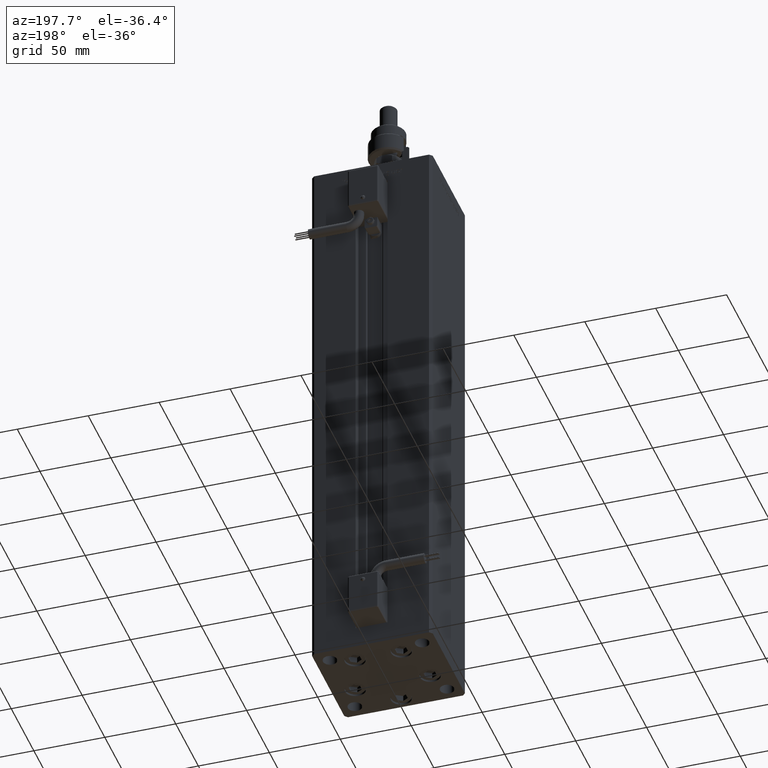
[diagram: clean part render]
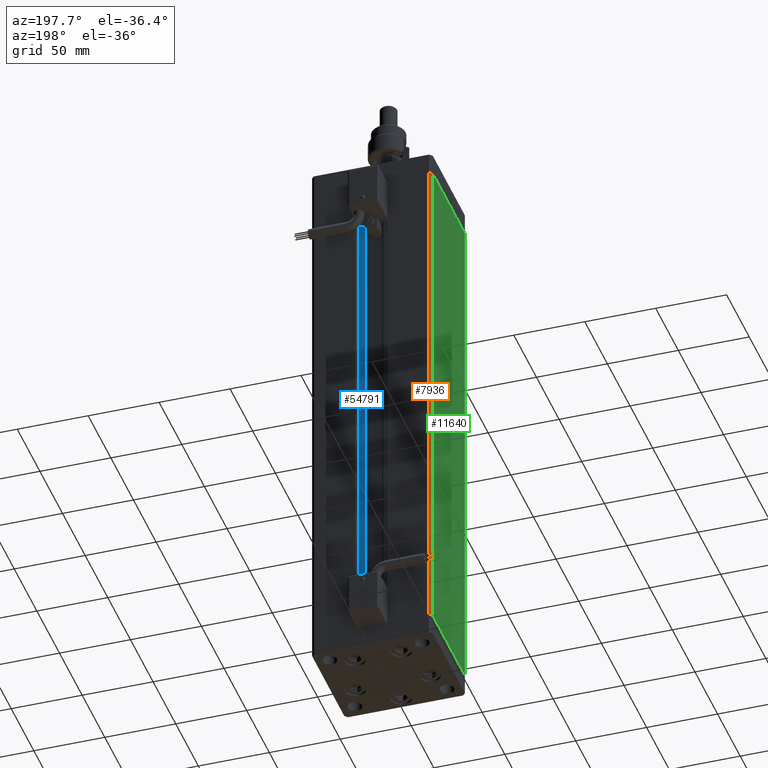
[diagram: same view with three faces highlighted in distinct colors, each labeled with its STEP entity id]
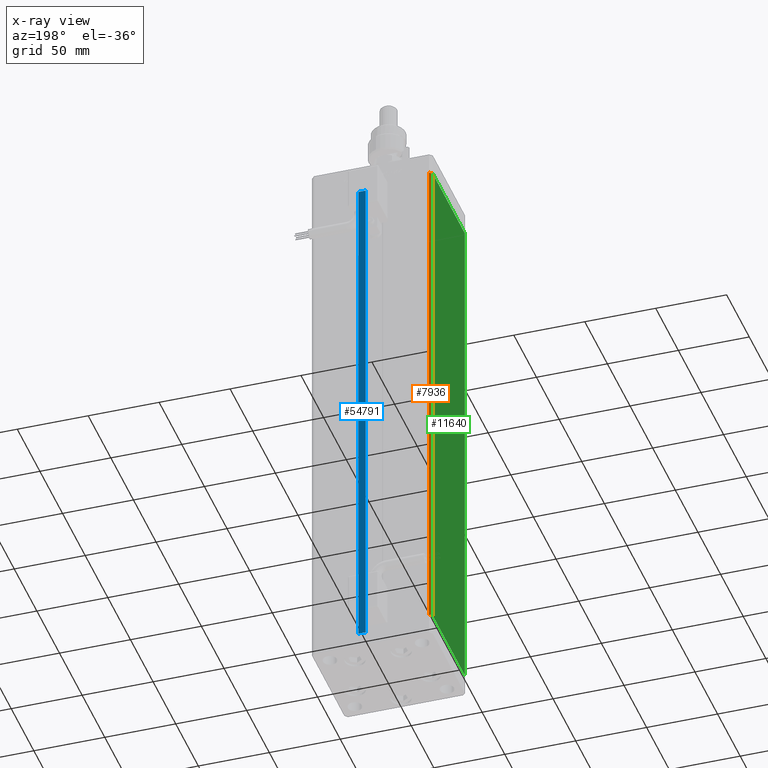
[diagram: x-ray of the same camera — body ghosted, the three highlighted faces saturated]
A machine part, auxiliary view with three faces highlighted in distinct colors.
The next image is the same camera in x-ray (body ghosted, the three faces saturated) — at least one of them is partly hidden behind the body in this view.
Their STEP definitions:

[orange] entity #7936 — the highlighted planar face has unit normal (0.7071, -0.7071, 0).
#1529 = FACE_OUTER_BOUND ( 'NONE', #43934, .T. ) ;
#1696 = CARTESIAN_POINT ( 'NONE',  ( -40.50000000000000000, 37.50000000000000711, 368.5000000000000000 ) ) ;
#2024 = VERTEX_POINT ( 'NONE', #6873 ) ;
#2466 = CARTESIAN_POINT ( 'NONE',  ( -40.50000000000000000, 37.50000000000000711, 0.000000000000000000 ) ) ;
#3852 = CARTESIAN_POINT ( 'NONE',  ( -42.50000000000000711, 35.50000000000001421, 368.5000000000000000 ) ) ;
#5640 = PLANE ( 'NONE',  #12697 ) ;
#6747 = ORIENTED_EDGE ( 'NONE', *, *, #14210, .T. ) ;
#6873 = CARTESIAN_POINT ( 'NONE',  ( -42.50000000000000711, 35.50000000000001421, 0.000000000000000000 ) ) ;
#7936 = ADVANCED_FACE ( 'NONE', ( #1529 ), #5640, .F. ) ;
#9927 = VERTEX_POINT ( 'NONE', #22973 ) ;
#11065 = VERTEX_POINT ( 'NONE', #3852 ) ;
#11210 = CARTESIAN_POINT ( 'NONE',  ( -40.50000000000000000, 37.50000000000000711, 368.5000000000000000 ) ) ;
#12697 = AXIS2_PLACEMENT_3D ( 'NONE', #11210, #55192, #23518 ) ;
#14210 = EDGE_CURVE ( 'NONE', #9927, #2024, #25334, .T. ) ;
#15450 = ORIENTED_EDGE ( 'NONE', *, *, #43812, .F. ) ;
#16911 = VERTEX_POINT ( 'NONE', #1696 ) ;
#17376 = VECTOR ( 'NONE', #32388, 1000.000000000000000 ) ;
#18228 = CARTESIAN_POINT ( 'NONE',  ( -40.50000000000000000, 37.50000000000000711, 368.5000000000000000 ) ) ;
#22973 = CARTESIAN_POINT ( 'NONE',  ( -40.50000000000000000, 37.50000000000000711, 0.000000000000000000 ) ) ;
#23518 = DIRECTION ( 'NONE',  ( 0.7071067811865499042, 0.7071067811865451302, 0.000000000000000000 ) ) ;
#23580 = ORIENTED_EDGE ( 'NONE', *, *, #41213, .T. ) ;
#25334 = LINE ( 'NONE', #2466, #34349 ) ;
#25824 = CARTESIAN_POINT ( 'NONE',  ( -40.50000000000000000, 37.50000000000000711, 368.5000000000000000 ) ) ;
#28981 = EDGE_CURVE ( 'NONE', #16911, #11065, #47251, .T. ) ;
#30045 = ORIENTED_EDGE ( 'NONE', *, *, #28981, .F. ) ;
#32388 = DIRECTION ( 'NONE',  ( -0.000000000000000000, -0.000000000000000000, -1.000000000000000000 ) ) ;
#34349 = VECTOR ( 'NONE', #51735, 1000.000000000000114 ) ;
#36114 = DIRECTION ( 'NONE',  ( -0.000000000000000000, -0.000000000000000000, -1.000000000000000000 ) ) ;
#36773 = LINE ( 'NONE', #54667, #17376 ) ;
#40360 = VECTOR ( 'NONE', #47547, 1000.000000000000114 ) ;
#41213 = EDGE_CURVE ( 'NONE', #16911, #9927, #54011, .T. ) ;
#43812 = EDGE_CURVE ( 'NONE', #11065, #2024, #36773, .T. ) ;
#43934 = EDGE_LOOP ( 'NONE', ( #6747, #15450, #30045, #23580 ) ) ;
#47251 = LINE ( 'NONE', #25824, #40360 ) ;
#47547 = DIRECTION ( 'NONE',  ( -0.7071067811865500152, -0.7071067811865451302, 0.000000000000000000 ) ) ;
#51735 = DIRECTION ( 'NONE',  ( -0.7071067811865500152, -0.7071067811865451302, 0.000000000000000000 ) ) ;
#53941 = VECTOR ( 'NONE', #36114, 1000.000000000000000 ) ;
#54011 = LINE ( 'NONE', #18228, #53941 ) ;
#54667 = CARTESIAN_POINT ( 'NONE',  ( -42.50000000000000711, 35.50000000000001421, 368.5000000000000000 ) ) ;
#55192 = DIRECTION ( 'NONE',  ( 0.7071067811865451302, -0.7071067811865499042, 0.000000000000000000 ) ) ;

[blue] entity #54791 — the highlighted planar face has unit normal (0, -1, 0).
#674 = VECTOR ( 'NONE', #2200, 1000.000000000000000 ) ;
#2200 = DIRECTION ( 'NONE',  ( -0.000000000000000000, -0.000000000000000000, 1.000000000000000000 ) ) ;
#2714 = DIRECTION ( 'NONE',  ( 1.000000000000000000, 0.000000000000000000, 0.000000000000000000 ) ) ;
#3677 = CARTESIAN_POINT ( 'NONE',  ( 11.25000000000000000, 30.99999999999999289, 0.000000000000000000 ) ) ;
#5820 = CARTESIAN_POINT ( 'NONE',  ( 6.183333333333999704, 30.99999999999999289, 0.000000000000000000 ) ) ;
#6041 = DIRECTION ( 'NONE',  ( -1.000000000000000000, 0.000000000000000000, 0.000000000000000000 ) ) ;
#6461 = VECTOR ( 'NONE', #42159, 1000.000000000000000 ) ;
#6718 = VERTEX_POINT ( 'NONE', #23297 ) ;
#10846 = VECTOR ( 'NONE', #2714, 1000.000000000000000 ) ;
#16007 = VERTEX_POINT ( 'NONE', #29256 ) ;
#16315 = EDGE_CURVE ( 'NONE', #29671, #6718, #46776, .T. ) ;
#17998 = AXIS2_PLACEMENT_3D ( 'NONE', #46144, #36207, #49688 ) ;
#19572 = EDGE_CURVE ( 'NONE', #49549, #16007, #23142, .T. ) ;
#20218 = ORIENTED_EDGE ( 'NONE', *, *, #16315, .F. ) ;
#23142 = LINE ( 'NONE', #5820, #6461 ) ;
#23297 = CARTESIAN_POINT ( 'NONE',  ( 11.25000000000000000, 30.99999999999999289, 368.5000000000000000 ) ) ;
#25007 = CARTESIAN_POINT ( 'NONE',  ( 6.183333333333999704, 30.99999999999999289, 0.000000000000000000 ) ) ;
#27585 = VECTOR ( 'NONE', #6041, 1000.000000000000000 ) ;
#28308 = CARTESIAN_POINT ( 'NONE',  ( 0.000000000000000000, 30.99999999999999289, 368.5000000000000000 ) ) ;
#28545 = FACE_OUTER_BOUND ( 'NONE', #48083, .T. ) ;
#29256 = CARTESIAN_POINT ( 'NONE',  ( 6.183333333333999704, 30.99999999999999289, 368.5000000000000000 ) ) ;
#29671 = VERTEX_POINT ( 'NONE', #3677 ) ;
#36207 = DIRECTION ( 'NONE',  ( 0.000000000000000000, -1.000000000000000000, 0.000000000000000000 ) ) ;
#37628 = ORIENTED_EDGE ( 'NONE', *, *, #19572, .T. ) ;
#37724 = EDGE_CURVE ( 'NONE', #6718, #16007, #46498, .T. ) ;
#40958 = EDGE_CURVE ( 'NONE', #49549, #29671, #51390, .T. ) ;
#41442 = PLANE ( 'NONE',  #17998 ) ;
#41509 = ORIENTED_EDGE ( 'NONE', *, *, #37724, .F. ) ;
#42159 = DIRECTION ( 'NONE',  ( -0.000000000000000000, -0.000000000000000000, 1.000000000000000000 ) ) ;
#42446 = CARTESIAN_POINT ( 'NONE',  ( 6.183333333333999704, 30.99999999999999289, 0.000000000000000000 ) ) ;
#46144 = CARTESIAN_POINT ( 'NONE',  ( 6.183333333333999704, 30.99999999999999289, 0.000000000000000000 ) ) ;
#46498 = LINE ( 'NONE', #28308, #27585 ) ;
#46776 = LINE ( 'NONE', #51469, #674 ) ;
#48083 = EDGE_LOOP ( 'NONE', ( #20218, #52990, #37628, #41509 ) ) ;
#49549 = VERTEX_POINT ( 'NONE', #42446 ) ;
#49688 = DIRECTION ( 'NONE',  ( 0.000000000000000000, -0.000000000000000000, -1.000000000000000000 ) ) ;
#51390 = LINE ( 'NONE', #25007, #10846 ) ;
#51469 = CARTESIAN_POINT ( 'NONE',  ( 11.25000000000000000, 30.99999999999999289, 0.000000000000000000 ) ) ;
#52990 = ORIENTED_EDGE ( 'NONE', *, *, #40958, .F. ) ;
#54791 = ADVANCED_FACE ( 'NONE', ( #28545 ), #41442, .F. ) ;

[green] entity #11640 — the highlighted planar face has unit normal (1, 0, 0).
#2024 = VERTEX_POINT ( 'NONE', #6873 ) ;
#2126 = DIRECTION ( 'NONE',  ( 1.000000000000000000, 2.931927001650941360E-16, -0.000000000000000000 ) ) ;
#3016 = VECTOR ( 'NONE', #17368, 1000.000000000000000 ) ;
#3852 = CARTESIAN_POINT ( 'NONE',  ( -42.50000000000000711, 35.50000000000001421, 368.5000000000000000 ) ) ;
#4168 = CARTESIAN_POINT ( 'NONE',  ( -42.49999999999998579, -35.50000000000000711, 368.5000000000000000 ) ) ;
#5211 = VERTEX_POINT ( 'NONE', #34775 ) ;
#6873 = CARTESIAN_POINT ( 'NONE',  ( -42.50000000000000711, 35.50000000000001421, 0.000000000000000000 ) ) ;
#11065 = VERTEX_POINT ( 'NONE', #3852 ) ;
#11640 = ADVANCED_FACE ( 'NONE', ( #38782 ), #24419, .F. ) ;
#11936 = LINE ( 'NONE', #38322, #25515 ) ;
#12675 = LINE ( 'NONE', #49029, #3016 ) ;
#17368 = DIRECTION ( 'NONE',  ( 2.931927001650941360E-16, -1.000000000000000000, 0.000000000000000000 ) ) ;
#17376 = VECTOR ( 'NONE', #32388, 1000.000000000000000 ) ;
#24419 = PLANE ( 'NONE',  #31420 ) ;
#25296 = DIRECTION ( 'NONE',  ( -2.931927001650941360E-16, 1.000000000000000000, 0.000000000000000000 ) ) ;
#25515 = VECTOR ( 'NONE', #56504, 1000.000000000000000 ) ;
#25957 = ORIENTED_EDGE ( 'NONE', *, *, #27505, .T. ) ;
#27505 = EDGE_CURVE ( 'NONE', #2024, #29075, #11936, .T. ) ;
#28370 = ORIENTED_EDGE ( 'NONE', *, *, #32773, .F. ) ;
#29075 = VERTEX_POINT ( 'NONE', #53101 ) ;
#30570 = DIRECTION ( 'NONE',  ( -0.000000000000000000, -0.000000000000000000, -1.000000000000000000 ) ) ;
#31420 = AXIS2_PLACEMENT_3D ( 'NONE', #46704, #2126, #25296 ) ;
#32388 = DIRECTION ( 'NONE',  ( -0.000000000000000000, -0.000000000000000000, -1.000000000000000000 ) ) ;
#32472 = ORIENTED_EDGE ( 'NONE', *, *, #43812, .T. ) ;
#32773 = EDGE_CURVE ( 'NONE', #11065, #5211, #12675, .T. ) ;
#34775 = CARTESIAN_POINT ( 'NONE',  ( -42.49999999999998579, -35.50000000000000711, 368.5000000000000000 ) ) ;
#36773 = LINE ( 'NONE', #54667, #17376 ) ;
#38322 = CARTESIAN_POINT ( 'NONE',  ( -42.50000000000000711, 35.50000000000001421, 0.000000000000000000 ) ) ;
#38782 = FACE_OUTER_BOUND ( 'NONE', #49686, .T. ) ;
#43812 = EDGE_CURVE ( 'NONE', #11065, #2024, #36773, .T. ) ;
#44918 = LINE ( 'NONE', #4168, #47440 ) ;
#46437 = EDGE_CURVE ( 'NONE', #5211, #29075, #44918, .T. ) ;
#46704 = CARTESIAN_POINT ( 'NONE',  ( -42.50000000000000711, 35.50000000000001421, 368.5000000000000000 ) ) ;
#47440 = VECTOR ( 'NONE', #30570, 1000.000000000000000 ) ;
#49029 = CARTESIAN_POINT ( 'NONE',  ( -42.50000000000000711, 35.50000000000001421, 368.5000000000000000 ) ) ;
#49686 = EDGE_LOOP ( 'NONE', ( #25957, #56302, #28370, #32472 ) ) ;
#53101 = CARTESIAN_POINT ( 'NONE',  ( -42.49999999999998579, -35.50000000000000711, 0.000000000000000000 ) ) ;
#54667 = CARTESIAN_POINT ( 'NONE',  ( -42.50000000000000711, 35.50000000000001421, 368.5000000000000000 ) ) ;
#56302 = ORIENTED_EDGE ( 'NONE', *, *, #46437, .F. ) ;
#56504 = DIRECTION ( 'NONE',  ( 2.931927001650941360E-16, -1.000000000000000000, 0.000000000000000000 ) ) ;